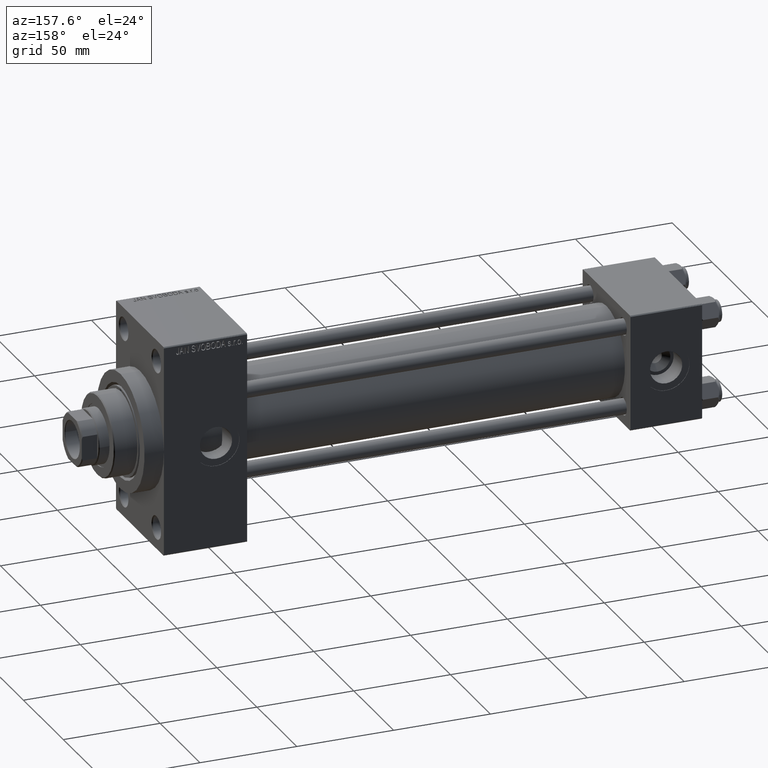
[diagram: clean part render]
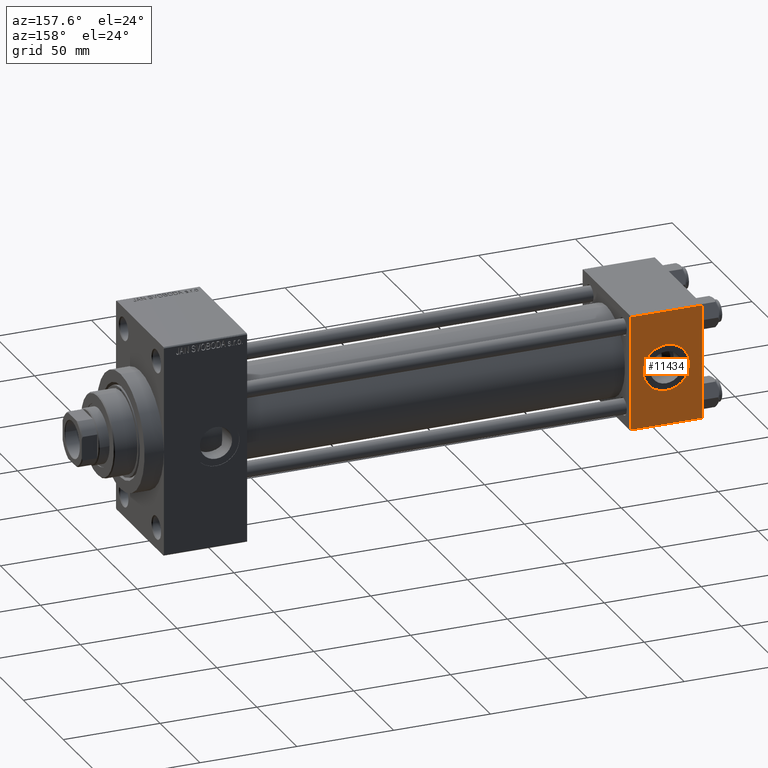
[diagram: same view with one face highlighted and labeled with its STEP entity id]
A machine part, auxiliary view. The second image highlights one B-rep face of the part: STEP entity #11434.
In plain terms, the highlighted planar face has unit normal (0, 1, 0).
Its self-contained STEP definition (entity closure, byte-faithful):
#277 = CARTESIAN_POINT ( 'NONE',  ( 37.00000000000000000, 29.99999999999999289, 30.00000000000000000 ) ) ;
#973 = ORIENTED_EDGE ( 'NONE', *, *, #36699, .F. ) ;
#2215 = AXIS2_PLACEMENT_3D ( 'NONE', #9845, #24927, #47973 ) ;
#2798 = VERTEX_POINT ( 'NONE', #37723 ) ;
#3292 = VERTEX_POINT ( 'NONE', #31396 ) ;
#3634 = DIRECTION ( 'NONE',  ( 0.000000000000000000, 0.000000000000000000, 1.000000000000000000 ) ) ;
#6795 = AXIS2_PLACEMENT_3D ( 'NONE', #7134, #30209, #3634 ) ;
#6836 = VECTOR ( 'NONE', #23103, 1000.000000000000000 ) ;
#7134 = CARTESIAN_POINT ( 'NONE',  ( 18.50000000000000000, 29.99999999999999289, 0.000000000000000000 ) ) ;
#9845 = CARTESIAN_POINT ( 'NONE',  ( 37.00000000000000000, 29.99999999999999289, 30.00000000000000000 ) ) ;
#10638 = CARTESIAN_POINT ( 'NONE',  ( 18.50000000000000000, 29.99999999999999289, 0.000000000000000000 ) ) ;
#11075 = EDGE_CURVE ( 'NONE', #3292, #2798, #28627, .T. ) ;
#11434 = ADVANCED_FACE ( 'NONE', ( #35683, #36676 ), #36163, .T. ) ;
#12245 = CARTESIAN_POINT ( 'NONE',  ( 0.000000000000000000, 29.99999999999999289, 29.50000000000000000 ) ) ;
#12854 = ORIENTED_EDGE ( 'NONE', *, *, #43100, .T. ) ;
#15258 = ORIENTED_EDGE ( 'NONE', *, *, #49063, .T. ) ;
#16822 = DIRECTION ( 'NONE',  ( 1.000000000000000000, 0.000000000000000000, 0.000000000000000000 ) ) ;
#17238 = EDGE_CURVE ( 'NONE', #23432, #40927, #33884, .T. ) ;
#18963 = VECTOR ( 'NONE', #16822, 1000.000000000000000 ) ;
#21487 = VERTEX_POINT ( 'NONE', #31022 ) ;
#23062 = ORIENTED_EDGE ( 'NONE', *, *, #28636, .T. ) ;
#23103 = DIRECTION ( 'NONE',  ( 0.000000000000000000, 0.000000000000000000, -1.000000000000000000 ) ) ;
#23432 = VERTEX_POINT ( 'NONE', #12245 ) ;
#23999 = VECTOR ( 'NONE', #44935, 1000.000000000000000 ) ;
#24927 = DIRECTION ( 'NONE',  ( -0.000000000000000000, 1.000000000000000000, 0.000000000000000000 ) ) ;
#24987 = DIRECTION ( 'NONE',  ( 0.000000000000000000, 1.000000000000000000, 0.000000000000000000 ) ) ;
#26137 = CARTESIAN_POINT ( 'NONE',  ( 0.000000000000000000, 29.99999999999999289, 30.00000000000000000 ) ) ;
#28426 = CIRCLE ( 'NONE', #6795, 12.00000000000000178 ) ;
#28627 = CIRCLE ( 'NONE', #47043, 12.00000000000000178 ) ;
#28636 = EDGE_CURVE ( 'NONE', #46251, #40927, #36978, .T. ) ;
#30209 = DIRECTION ( 'NONE',  ( 0.000000000000000000, 1.000000000000000000, 0.000000000000000000 ) ) ;
#31022 = CARTESIAN_POINT ( 'NONE',  ( 37.00000000000000000, 29.99999999999999289, 29.50000000000000000 ) ) ;
#31396 = CARTESIAN_POINT ( 'NONE',  ( 18.50000000000000000, 29.99999999999999289, 12.00000000000000178 ) ) ;
#33884 = LINE ( 'NONE', #26137, #23999 ) ;
#35683 = FACE_BOUND ( 'NONE', #44974, .T. ) ;
#36163 = PLANE ( 'NONE',  #2215 ) ;
#36676 = FACE_OUTER_BOUND ( 'NONE', #43811, .T. ) ;
#36699 = EDGE_CURVE ( 'NONE', #2798, #3292, #28426, .T. ) ;
#36978 = LINE ( 'NONE', #48521, #41892 ) ;
#37723 = CARTESIAN_POINT ( 'NONE',  ( 18.50000000000000000, 29.99999999999999289, -12.00000000000000178 ) ) ;
#40927 = VERTEX_POINT ( 'NONE', #43525 ) ;
#41228 = DIRECTION ( 'NONE',  ( 0.000000000000000000, 0.000000000000000000, 1.000000000000000000 ) ) ;
#41892 = VECTOR ( 'NONE', #44760, 1000.000000000000000 ) ;
#42622 = LINE ( 'NONE', #277, #6836 ) ;
#42952 = ORIENTED_EDGE ( 'NONE', *, *, #17238, .F. ) ;
#43100 = EDGE_CURVE ( 'NONE', #21487, #46251, #42622, .T. ) ;
#43394 = LINE ( 'NONE', #44131, #18963 ) ;
#43518 = ORIENTED_EDGE ( 'NONE', *, *, #11075, .F. ) ;
#43525 = CARTESIAN_POINT ( 'NONE',  ( 0.000000000000000000, 29.99999999999999289, -29.50000000000000000 ) ) ;
#43811 = EDGE_LOOP ( 'NONE', ( #12854, #23062, #42952, #15258 ) ) ;
#44131 = CARTESIAN_POINT ( 'NONE',  ( 37.00000000000000000, 29.99999999999999289, 29.50000000000000000 ) ) ;
#44760 = DIRECTION ( 'NONE',  ( -1.000000000000000000, 0.000000000000000000, 0.000000000000000000 ) ) ;
#44935 = DIRECTION ( 'NONE',  ( 0.000000000000000000, 0.000000000000000000, -1.000000000000000000 ) ) ;
#44974 = EDGE_LOOP ( 'NONE', ( #43518, #973 ) ) ;
#46251 = VERTEX_POINT ( 'NONE', #48934 ) ;
#47043 = AXIS2_PLACEMENT_3D ( 'NONE', #10638, #24987, #41228 ) ;
#47973 = DIRECTION ( 'NONE',  ( 0.000000000000000000, -0.000000000000000000, 1.000000000000000000 ) ) ;
#48521 = CARTESIAN_POINT ( 'NONE',  ( 37.00000000000000000, 29.99999999999999289, -29.50000000000000000 ) ) ;
#48934 = CARTESIAN_POINT ( 'NONE',  ( 37.00000000000000000, 29.99999999999999289, -29.50000000000000000 ) ) ;
#49063 = EDGE_CURVE ( 'NONE', #23432, #21487, #43394, .T. ) ;